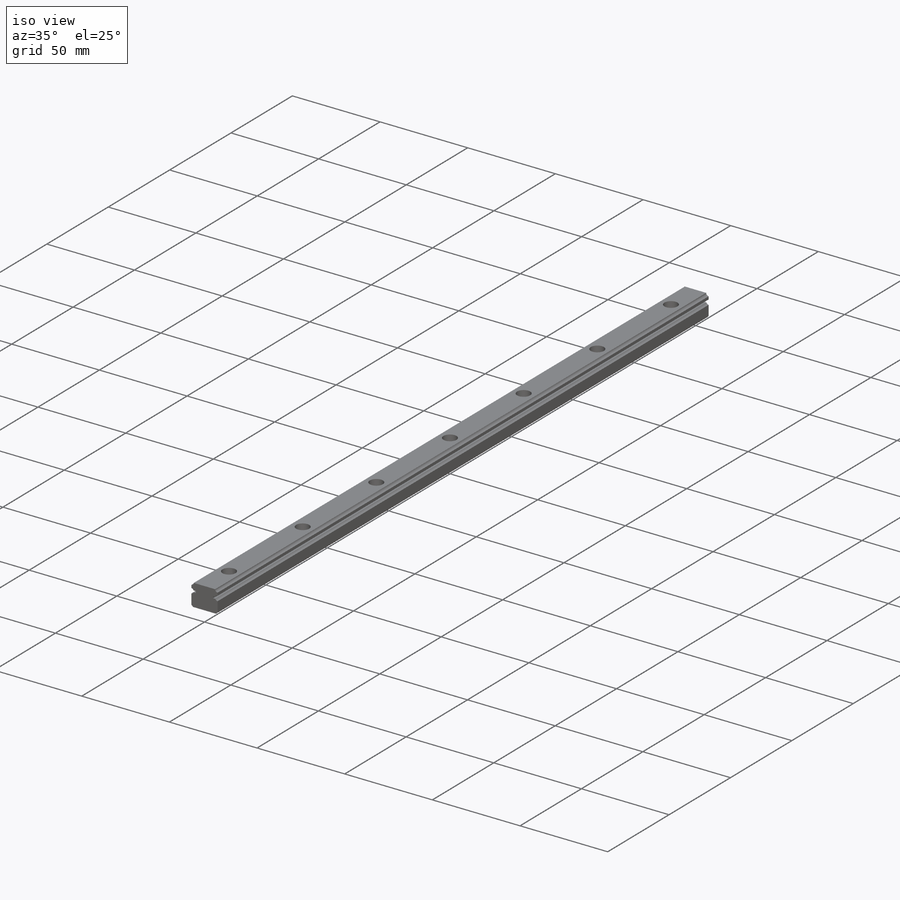
[diagram: iso view]
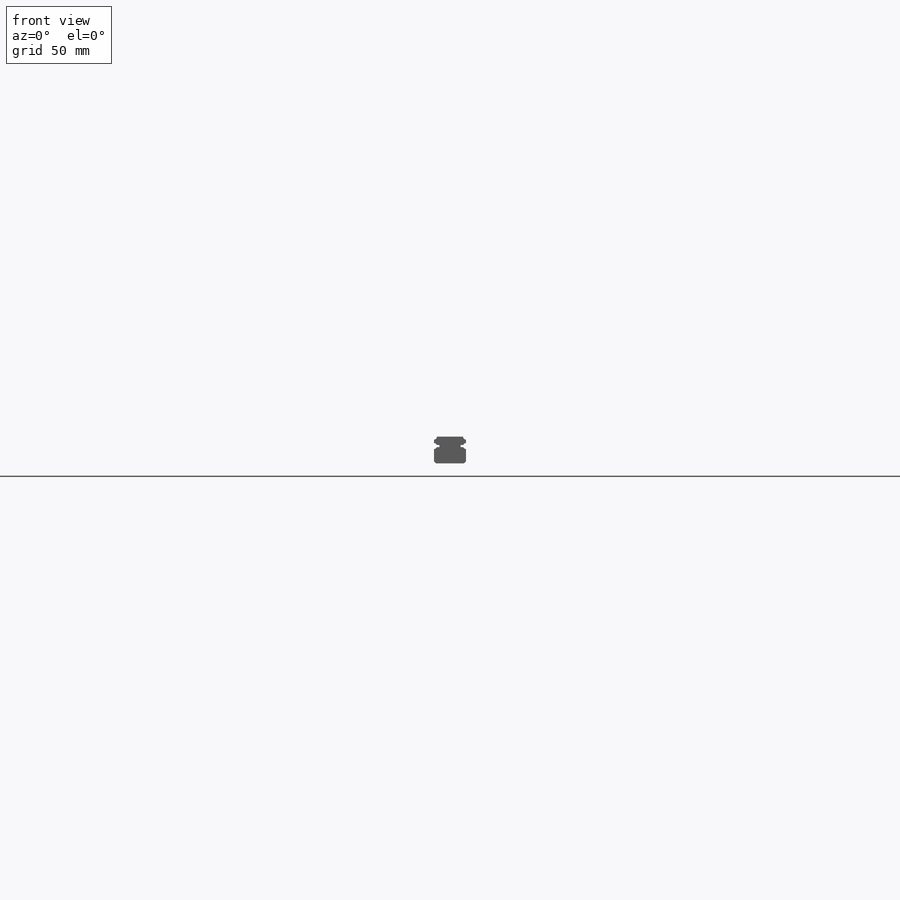
[diagram: front view]
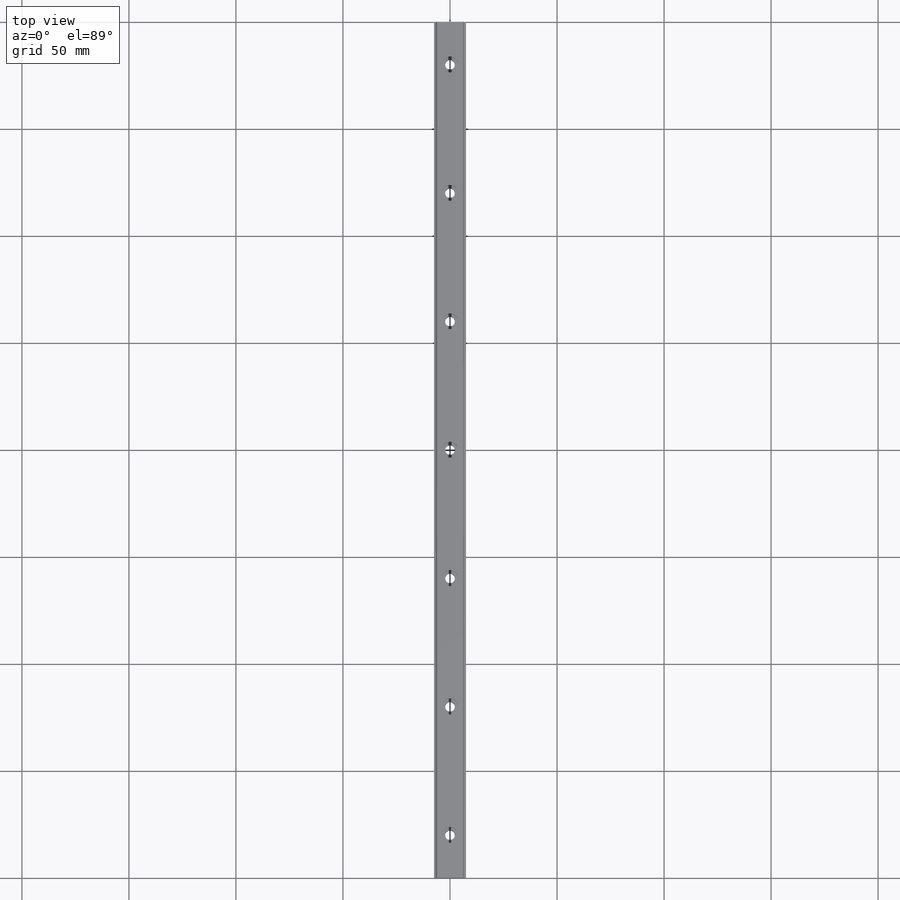
[diagram: top view]
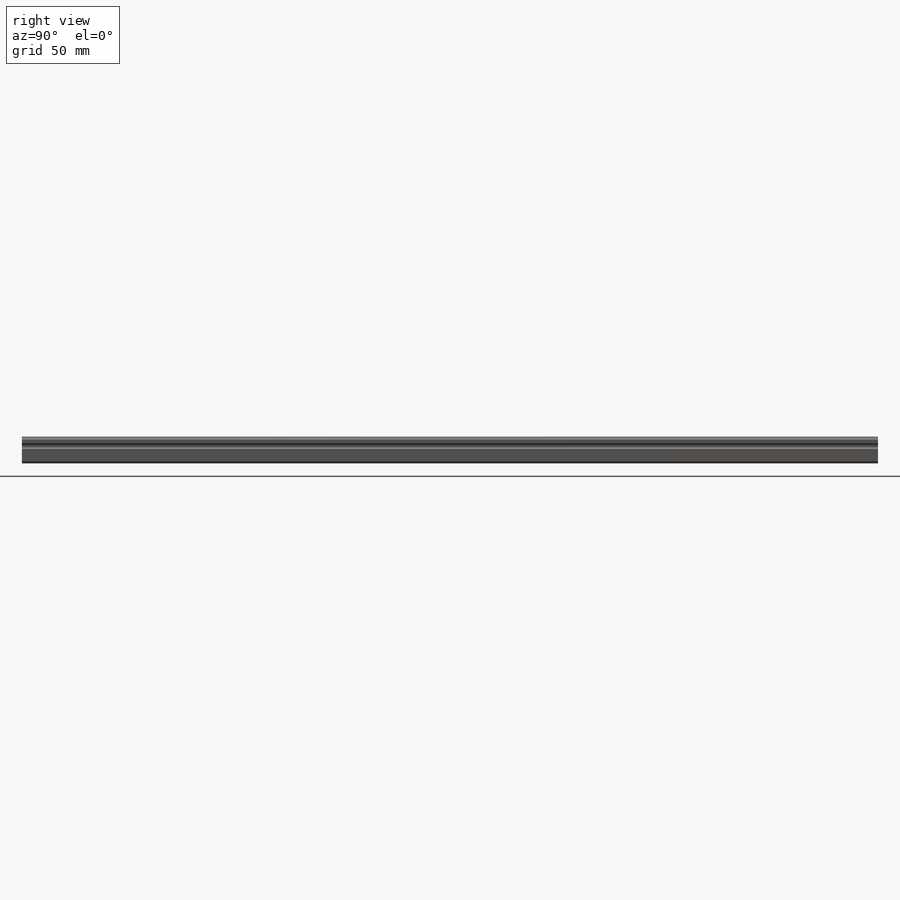
[diagram: right view]
SOLIDWORKS PART (.sldprt)
format: sldprt  version: not decoded by parser v0  size: 268,800 bytes
history: native  units: mm
features: sketch x3, cut_revolve x2, material x1, extrude x1, pattern_linear x1 (+14 scaffold rows collapsed)
feature tree (22):
  scaffold x14  (default folders/planes/origin — collapsed)
  material  "Material <not specified>"
  sketch  "15mm"  dims[c1.D1=~10.508732mm c2.D1=45.0deg c3.D1=0.0mm]
  extrude  "Extrude1"  Depth=400mm
  sketch  "Sketch1"  dims[D1=4.5mm D2=7.5mm D3=5.3mm D4=20.0mm]
  cut_revolve  "Cut-Revolve1"  Angle=360deg
  sketch  "Sketch2"
  cut_revolve  "Cut-Revolve2"  Angle=360deg
  pattern_linear  "LPattern1"  Count1=6 Count2=1 Spacing1=60mm Spacing2=1mm
decode coverage: 6 of 7 modeling features carry decoded parameters
note: ~ marks probable driven/reference dimensions
note: suppression state not decoded; provenance and decode notes live in map.json
